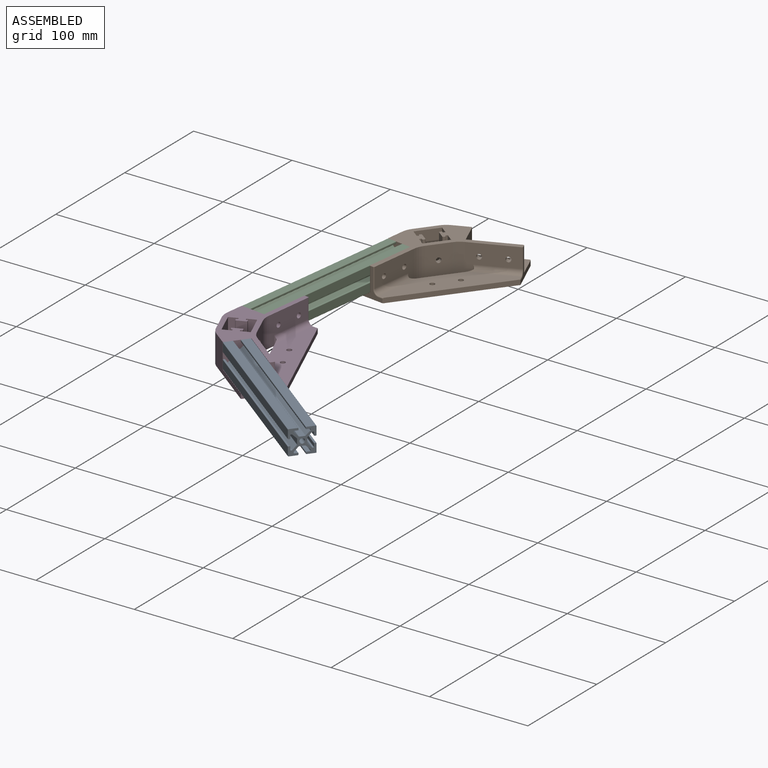
[diagram: assembled view]
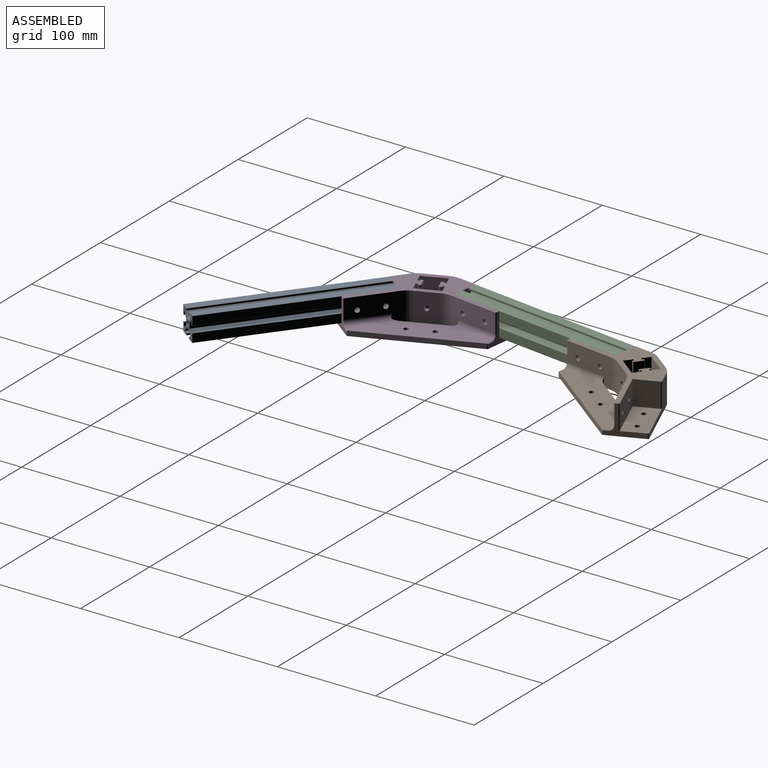
[diagram: assembled view, second angle]
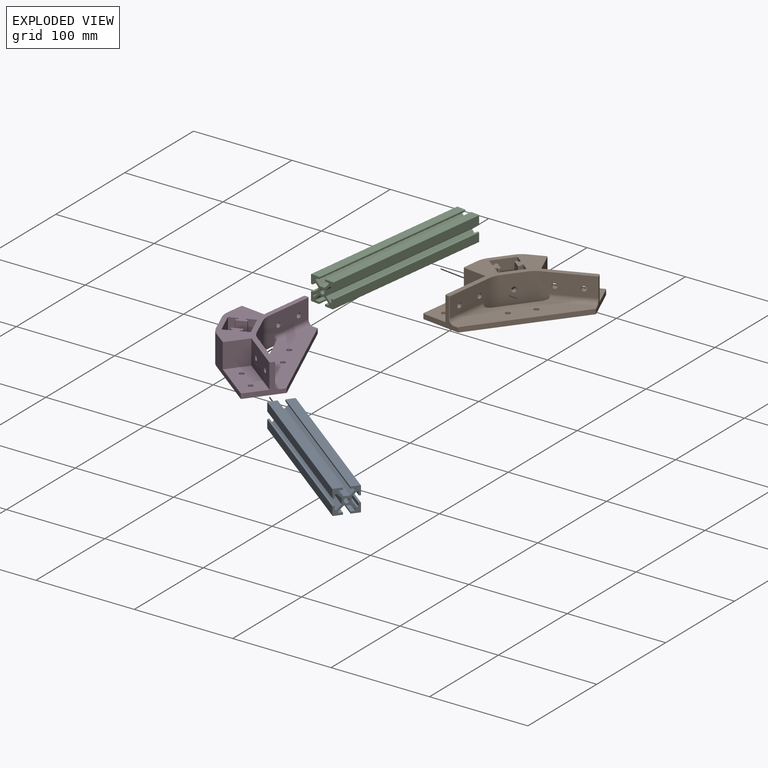
[diagram: exploded view]
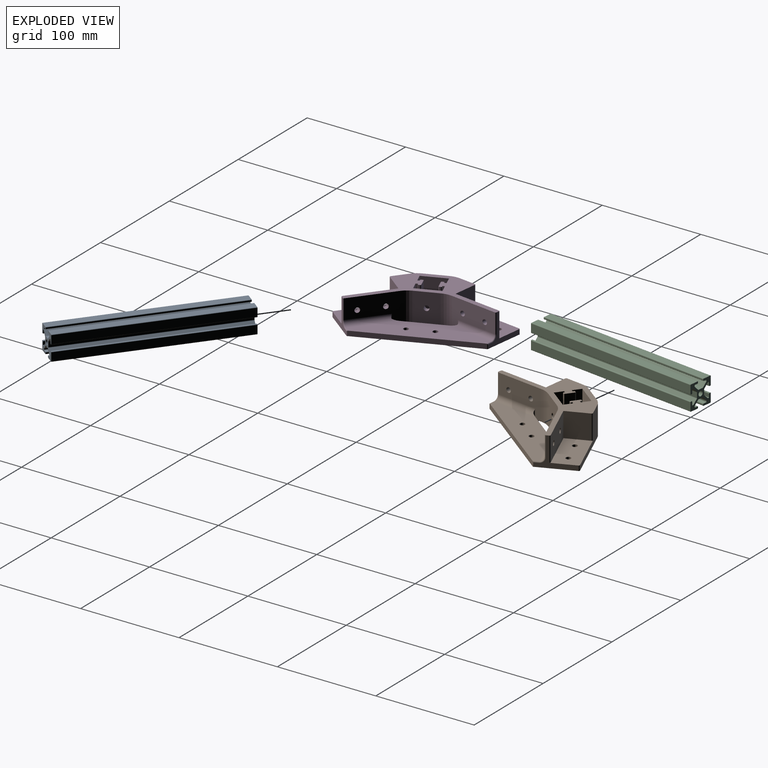
[diagram: exploded view, second angle]
ASSEMBLY  parts=4 mates=9
PART A: 91 faces, bbox 25x25x180 mm
  f0: cylinder r=0.5mm len=180mm, axis (0,0,-1), area 70.7mm2, adj f1,f88,f89,f90
  f1: plane 180x5.33mm, normal (0,1,0), area 960mm2, adj f0,f2,f89,f90
  f2: cylinder r=0.5mm len=180mm, axis (0,0,-1), area 70.7mm2, adj f1,f3,f89,f90
  f3: plane 180x4.18mm, normal (0.71,0.71,0), area 1063.6mm2, adj f2,f4,f89,f90
  f4: cylinder r=0.5mm len=180mm, axis (0,0,-1), area 70.7mm2, adj f3,f5,f89,f90
  f5: plane 180x0.81mm, normal (1,0,0), area 146.1mm2, adj f4,f6,f89,f90
  f6: cylinder r=0.5mm len=180mm, axis (0,0,-1), area 141.4mm2, adj f5,f7,f89,f90
  f7: plane 180x3.1mm, normal (0,-1,0), area 557.1mm2, adj f6,f8,f89,f90
  f8: cylinder r=0.5mm len=180mm, axis (0,0,-1), area 141.4mm2, adj f7,f9,f89,f90
  f9: plane 180x1.13mm, normal (1,0,0), area 203.4mm2, adj f8,f10,f89,f90
  f10: cylinder r=0.5mm len=180mm, axis (0,0,-1), area 141.4mm2, adj f9,f11,f89,f90
  f11: plane 180x8.25mm, normal (0,1,0), area 1485mm2, adj f10,f12,f89,f90
  f12: cylinder r=0.5mm len=180mm, axis (0,0,-1), area 141.4mm2, adj f11,f13,f89,f90
  f13: plane 180x8.25mm, normal (-1,0,0), area 1485mm2, adj f12,f14,f89,f90
  f14: cylinder r=0.5mm len=180mm, axis (0,0,-1), area 141.4mm2, adj f13,f15,f89,f90
  f15: plane 180x1.13mm, normal (0,-1,0), area 203.4mm2, adj f14,f16,f89,f90
  f16: cylinder r=0.5mm len=180mm, axis (0,0,-1), area 141.4mm2, adj f15,f17,f89,f90
  f17: plane 180x3.1mm, normal (1,0,0), area 557.1mm2, adj f16,f18,f89,f90
  f18: cylinder r=0.5mm len=180mm, axis (0,0,-1), area 141.4mm2, adj f17,f19,f89,f90
  f19: plane 180x0.81mm, normal (0,-1,0), area 146.1mm2, adj f18,f20,f89,f90
  f20: cylinder r=0.5mm len=180mm, axis (0,0,-1), area 70.7mm2, adj f19,f21,f89,f90
  f21: plane 180x4.18mm, normal (-0.71,-0.71,0), area 1063.6mm2, adj f20,f22,f89,f90
  f22: cylinder r=0.5mm len=180mm, axis (0,0,-1), area 70.7mm2, adj f21,f23,f89,f90
  f23: plane 180x5.33mm, normal (-1,0,0), area 960mm2, adj f22,f24,f89,f90
  f24: cylinder r=0.5mm len=180mm, axis (0,0,-1), area 70.7mm2, adj f23,f25,f89,f90
  f25: plane 180x4.18mm, normal (-0.71,0.71,0), area 1063.6mm2, adj f24,f26,f89,f90
  f26: cylinder r=0.5mm len=180mm, axis (0,0,-1), area 70.7mm2, adj f25,f27,f89,f90
  f27: plane 180x0.81mm, normal (0,1,0), area 146.1mm2, adj f26,f28,f89,f90
  f28: cylinder r=0.5mm len=180mm, axis (0,0,-1), area 141.4mm2, adj f27,f29,f89,f90
  f29: plane 180x3.1mm, normal (1,0,0), area 557.1mm2, adj f28,f30,f89,f90
  f30: cylinder r=0.5mm len=180mm, axis (0,0,-1), area 141.4mm2, adj f29,f31,f89,f90
  f31: plane 180x1.13mm, normal (0,1,0), area 203.4mm2, adj f30,f32,f89,f90
  f32: cylinder r=0.5mm len=180mm, axis (0,0,-1), area 141.4mm2, adj f31,f33,f89,f90
  f33: plane 180x8.25mm, normal (-1,0,0), area 1485mm2, adj f32,f34,f89,f90
  f34: cylinder r=0.5mm len=180mm, axis (0,0,-1), area 141.4mm2, adj f33,f35,f89,f90
  f35: plane 180x8.25mm, normal (0,-1,0), area 1485mm2, adj f34,f36,f89,f90
  f36: cylinder r=0.5mm len=180mm, axis (0,0,-1), area 141.4mm2, adj f35,f37,f89,f90
  f37: plane 180x1.13mm, normal (1,0,0), area 203.4mm2, adj f36,f38,f89,f90
  f38: cylinder r=0.5mm len=180mm, axis (0,0,-1), area 141.4mm2, adj f37,f39,f89,f90
  f39: plane 180x3.1mm, normal (0,1,0), area 557.1mm2, adj f38,f40,f89,f90
  f40: cylinder r=0.5mm len=180mm, axis (0,0,-1), area 141.4mm2, adj f39,f41,f89,f90
  f41: plane 180x0.81mm, normal (1,0,0), area 146.1mm2, adj f40,f42,f89,f90
  f42: cylinder r=0.5mm len=180mm, axis (0,0,-1), area 70.7mm2, adj f41,f43,f89,f90
  f43: plane 180x4.18mm, normal (0.71,-0.71,0), area 1063.6mm2, adj f42,f44,f89,f90
  f44: cylinder r=0.5mm len=180mm, axis (0,0,-1), area 70.7mm2, adj f43,f45,f89,f90
  f45: plane 180x5.33mm, normal (0,-1,0), area 960mm2, adj f44,f46,f89,f90
  f46: cylinder r=0.5mm len=180mm, axis (0,0,-1), area 70.7mm2, adj f45,f47,f89,f90
  f47: plane 180x4.18mm, normal (-0.71,-0.71,0), area 1063.6mm2, adj f46,f48,f89,f90
  f48: cylinder r=0.5mm len=180mm, axis (0,0,-1), area 70.7mm2, adj f47,f49,f89,f90
  f49: plane 180x0.81mm, normal (-1,0,0), area 146.1mm2, adj f48,f50,f89,f90
  f50: cylinder r=0.5mm len=180mm, axis (0,0,-1), area 141.4mm2, adj f49,f51,f89,f90
  f51: plane 180x3.1mm, normal (0,1,0), area 557.1mm2, adj f50,f52,f89,f90
  f52: cylinder r=0.5mm len=180mm, axis (0,0,-1), area 141.4mm2, adj f51,f53,f89,f90
  f53: plane 180x1.13mm, normal (-1,0,0), area 203.4mm2, adj f52,f54,f89,f90
  f54: cylinder r=0.5mm len=180mm, axis (0,0,-1), area 141.4mm2, adj f53,f55,f89,f90
  f55: plane 180x8.25mm, normal (0,-1,0), area 1485mm2, adj f54,f56,f89,f90
  f56: cylinder r=0.5mm len=180mm, axis (0,0,-1), area 141.4mm2, adj f55,f57,f89,f90
  f57: plane 180x8.25mm, normal (1,0,0), area 1485mm2, adj f56,f58,f89,f90
  f58: cylinder r=0.5mm len=180mm, axis (0,0,-1), area 141.4mm2, adj f57,f59,f89,f90
  f59: plane 180x1.13mm, normal (0,1,0), area 203.4mm2, adj f58,f60,f89,f90
  f60: cylinder r=0.5mm len=180mm, axis (0,0,-1), area 141.4mm2, adj f59,f61,f89,f90
  f61: plane 180x3.1mm, normal (-1,0,0), area 557.1mm2, adj f60,f62,f89,f90
  f62: cylinder r=0.5mm len=180mm, axis (0,0,-1), area 141.4mm2, adj f61,f63,f89,f90
  f63: plane 180x0.81mm, normal (0,1,0), area 146.1mm2, adj f62,f64,f89,f90
  f64: cylinder r=0.5mm len=180mm, axis (0,0,-1), area 70.7mm2, adj f63,f65,f89,f90
  f65: plane 180x4.18mm, normal (0.71,0.71,0), area 1063.6mm2, adj f64,f66,f89,f90
  f66: cylinder r=0.5mm len=180mm, axis (0,0,-1), area 70.7mm2, adj f65,f67,f89,f90
  f67: plane 180x5.33mm, normal (1,0,0), area 960mm2, adj f66,f68,f89,f90
  f68: cylinder r=0.5mm len=180mm, axis (0,0,-1), area 70.7mm2, adj f67,f69,f89,f90
  f69: plane 180x4.18mm, normal (0.71,-0.71,0), area 1063.6mm2, adj f68,f70,f89,f90
  f70: cylinder r=0.5mm len=180mm, axis (0,0,-1), area 70.7mm2, adj f69,f71,f89,f90
  f71: plane 180x0.81mm, normal (0,-1,0), area 146.1mm2, adj f70,f72,f89,f90
  f72: cylinder r=0.5mm len=180mm, axis (0,0,-1), area 141.4mm2, adj f71,f73,f89,f90
  f73: plane 180x3.1mm, normal (-1,0,0), area 557.1mm2, adj f72,f74,f89,f90
  f74: cylinder r=0.5mm len=180mm, axis (0,0,-1), area 141.4mm2, adj f73,f75,f89,f90
  f75: plane 180x1.13mm, normal (0,-1,0), area 203.4mm2, adj f74,f76,f89,f90
  f76: cylinder r=0.5mm len=180mm, axis (0,0,-1), area 141.4mm2, adj f75,f77,f89,f90
  f77: plane 180x8.25mm, normal (1,0,0), area 1485mm2, adj f76,f78,f89,f90
  f78: cylinder r=0.5mm len=180mm, axis (0,0,-1), area 141.4mm2, adj f77,f79,f89,f90
  f79: plane 180x8.25mm, normal (0,1,0), area 1485mm2, adj f78,f80,f89,f90
  f80: cylinder r=0.5mm len=180mm, axis (0,0,-1), area 141.4mm2, adj f79,f81,f89,f90
  f81: plane 180x1.13mm, normal (-1,0,0), area 203.4mm2, adj f80,f82,f89,f90
  f82: cylinder r=0.5mm len=180mm, axis (0,0,-1), area 141.4mm2, adj f81,f83,f89,f90
  f83: plane 180x3.1mm, normal (0,-1,0), area 557.1mm2, adj f82,f84,f89,f90
  f84: cylinder r=0.5mm len=180mm, axis (0,0,-1), area 141.4mm2, adj f83,f85,f89,f90
  f85: plane 180x0.81mm, normal (-1,0,0), area 146.1mm2, adj f84,f86,f89,f90
  f86: cylinder r=0.5mm len=180mm, axis (0,0,-1), area 70.7mm2, adj f85,f88,f89,f90
  f87: cylinder r=2.5mm len=180mm, axis (0,0,-1), area 2827.4mm2, adj f89,f90
  f88: plane 180x4.18mm, normal (-0.71,0.71,0), area 1063.6mm2, adj f0,f86,f89,f90
  f89: plane 25x25mm, normal (0,0,1), area 277.4mm2, adj f0,f1,f2,f3,f4,f5,f6,f7
  f90: plane 25x25mm, normal (0,0,-1), area 277.4mm2, adj f0,f1,f2,f3,f4,f5,f6,f7
PART B: 80 faces, bbox 71.7x159.5x30 mm
  f0: plane 42.12x30mm, normal (0.87,0.5,0), area 1002.6mm2, adj f21,f22,f53,f54,f55,f63,f64,f73
  f1: plane 30x24.28mm, normal (1,0,0), area 708.8mm2, adj f21,f22,f26,f31,f55
  f2: plane 25x20.78mm, normal (0.5,0.87,0), area 600mm2, adj f21,f23,f24,f79
  f3: cylinder r=0.75mm len=30mm, axis (0,0,-1), area 35.3mm2, adj f4,f20,f21,f22
  f4: plane 30x1.5mm, normal (1,0,0), area 45mm2, adj f3,f5,f21,f22
  f5: cylinder r=0.75mm len=30mm, axis (0,0,-1), area 35.3mm2, adj f4,f6,f21,f22
  f6: plane 30x1.25mm, normal (0,1,0), area 37.5mm2, adj f5,f7,f21,f22
  f7: plane 30x2.13mm, normal (1,0,0), area 63.9mm2, adj f6,f8,f21,f22
  f8: plane 30x9.25mm, normal (0,-1,0), area 277.5mm2, adj f7,f9,f21,f22
  f9: plane 30x25mm, normal (-1,0,0), area 730.4mm2, adj f8,f21,f22,f26,f39
  f10: plane 42.12x30mm, normal (0.87,-0.5,0), area 1002.6mm2, adj f21,f22,f29,f30,f31,f62,f68,f72
  f11: plane 57.75x33.34mm, normal (-0.87,0.5,0), area 750.4mm2, adj f21,f22,f23,f32,f78,f79
  f12: plane 30x23.04mm, normal (-1,0,0), area 691.2mm2, adj f21,f22,f32,f56
  f13: plane 30x25mm, normal (1,0,0), area 750mm2, adj f14,f21,f22,f41
  f14: plane 30x9.25mm, normal (0,-1,0), area 277.5mm2, adj f13,f15,f21,f22
  f15: plane 30x2.13mm, normal (-1,0,0), area 63.9mm2, adj f14,f16,f21,f22
  f16: plane 30x1.25mm, normal (0,1,0), area 37.5mm2, adj f15,f17,f21,f22
  f17: cylinder r=0.75mm len=30mm, axis (0,0,-1), area 35.3mm2, adj f16,f18,f21,f22
  f18: plane 30x1.5mm, normal (-1,0,0), area 45mm2, adj f17,f19,f21,f22
  f19: cylinder r=0.75mm len=30mm, axis (0,0,-1), area 35.3mm2, adj f18,f20,f21,f22
  f20: plane 30x9mm, normal (0,-1,0), area 270mm2, adj f3,f19,f21,f22
  f21: plane 134.53x62.13mm, normal (0,0,1), area 2007.8mm2, adj f0,f1,f2,f3,f4,f5,f6,f7
  f22: plane 159.53x71.16mm, normal (0,0,-1), area 7361.9mm2, adj f0,f1,f3,f4,f5,f6,f7,f8
  f23: plane 55.44x48.02mm, normal (0,0,1), area 1210.9mm2, adj f2,f11,f24,f25,f27,f28,f77,f78
  f24: plane 42.44x25mm, normal (-0.87,0.5,0), area 1185.7mm2, adj f2,f21,f23,f29,f30,f77
  f25: plane 33.28x30mm, normal (0.5,0.87,0), area 264.4mm2, adj f21,f22,f23,f68,f69,f70,f71,f77
  f26: cylinder r=2.5mm len=5mm, axis (1,0,0), area 78.5mm2, adj f1,f9
  f27: cylinder r=2.5mm len=5mm, axis (0,0,-1), area 78.5mm2, adj f22,f23
  f28: cylinder r=2.5mm len=5mm, axis (0,0,-1), area 78.5mm2, adj f22,f23
  f29: cylinder r=2.5mm len=6.83mm, axis (0.87,-0.5,0), area 78.5mm2, adj f10,f24
  f30: cylinder r=2.5mm len=6.83mm, axis (0.87,-0.5,0), area 78.5mm2, adj f10,f24
  f31: cylinder r=20mm len=30mm, axis (0,0,1), area 314.2mm2, adj f1,f10,f21,f22
  f32: cylinder r=20mm len=30mm, axis (0,0,-1), area 314.2mm2, adj f11,f12,f21,f22
  f33: plane 25x20.78mm, normal (0.5,-0.87,0), area 600mm2, adj f21,f48,f49,f76
  f34: cylinder r=0.75mm len=30mm, axis (0,0,-1), area 35.3mm2, adj f21,f22,f35,f47
  f35: plane 30x1.5mm, normal (1,0,0), area 45mm2, adj f21,f22,f34,f36
  f36: cylinder r=0.75mm len=30mm, axis (0,0,-1), area 35.3mm2, adj f21,f22,f35,f37
  f37: plane 30x1.25mm, normal (0,-1,0), area 37.5mm2, adj f21,f22,f36,f38
  f38: plane 30x2.13mm, normal (1,0,0), area 63.9mm2, adj f21,f22,f37,f39
  f39: plane 30x9.25mm, normal (0,1,0), area 277.5mm2, adj f9,f21,f22,f38
  f40: plane 57.75x33.34mm, normal (-0.87,-0.5,0), area 750.4mm2, adj f21,f22,f48,f56,f74,f76
  f41: plane 30x9.25mm, normal (0,1,0), area 277.5mm2, adj f13,f21,f22,f42
  f42: plane 30x2.13mm, normal (-1,0,0), area 63.9mm2, adj f21,f22,f41,f43
  f43: plane 30x1.25mm, normal (0,-1,0), area 37.5mm2, adj f21,f22,f42,f44
  f44: cylinder r=0.75mm len=30mm, axis (0,0,-1), area 35.3mm2, adj f21,f22,f43,f45
  f45: plane 30x1.5mm, normal (-1,0,0), area 45mm2, adj f21,f22,f44,f46
  f46: cylinder r=0.75mm len=30mm, axis (0,0,-1), area 35.3mm2, adj f21,f22,f45,f47
  f47: plane 30x9mm, normal (0,1,0), area 270mm2, adj f21,f22,f34,f46
  f48: plane 55.44x48.02mm, normal (0,0,1), area 1210.9mm2, adj f33,f40,f49,f50,f51,f52,f74,f75
  f49: plane 42.44x25mm, normal (-0.87,-0.5,0), area 1185.7mm2, adj f21,f33,f48,f53,f54,f75
  f50: plane 33.28x30mm, normal (0.5,-0.87,0), area 264.4mm2, adj f21,f22,f48,f64,f65,f66,f67,f74
  f51: cylinder r=2.5mm len=5mm, axis (0,0,-1), area 78.5mm2, adj f22,f48
  f52: cylinder r=2.5mm len=5mm, axis (0,0,-1), area 78.5mm2, adj f22,f48
  f53: cylinder r=2.5mm len=6.83mm, axis (0.87,0.5,0), area 78.5mm2, adj f0,f49
  f54: cylinder r=2.5mm len=6.83mm, axis (0.87,0.5,0), area 78.5mm2, adj f0,f49
  f55: cylinder r=20mm len=30mm, axis (0,0,1), area 314.2mm2, adj f0,f1,f21,f22
  f56: cylinder r=20mm len=30mm, axis (0,0,-1), area 314.2mm2, adj f12,f21,f22,f40
  f57: plane 123.53x28.16mm, normal (0,0,1), area 2483.2mm2, adj f58,f59,f60,f61,f62,f63,f67,f71
  f58: plane 119.12x5.01mm, normal (1,0,0), area 595.5mm2, adj f22,f57,f65,f67,f70,f71
  f59: plane 55.25x6.1mm, normal (-1,0,0), area 280.6mm2, adj f22,f57,f62,f63,f72,f73
  f60: cylinder r=2.5mm len=5mm, axis (0,0,-1), area 78.5mm2, adj f22,f57
  f61: cylinder r=2.5mm len=5mm, axis (0,0,-1), area 78.5mm2, adj f22,f57
  f62: cylinder r=5mm len=42.91mm, axis (0.5,0.87,0), area 331.8mm2, adj f10,f57,f59,f69,f72
  f63: cylinder r=5mm len=42.91mm, axis (-0.5,0.87,0), area 331.8mm2, adj f0,f57,f59,f66,f73
  f64: cylinder r=1mm len=20mm, axis (0,0,-1), area 31.4mm2, adj f0,f21,f50,f66
  f65: cylinder r=1mm len=4.87mm, axis (0,0,1), area 4.6mm2, adj f22,f50,f58,f67
  f66: torus R=6mm, axis (0.5,-0.87,0), area 13.2mm2, adj f50,f63,f64,f67
  f67: cylinder r=1mm len=5.33mm, axis (0.87,0.5,0), area 7.9mm2, adj f50,f57,f58,f65,f66
  f68: cylinder r=1mm len=20mm, axis (0,0,-1), area 31.4mm2, adj f10,f21,f25,f69
  f69: torus R=6mm, axis (0.5,0.87,0), area 13.2mm2, adj f25,f62,f68,f71
  f70: cylinder r=1mm len=4.87mm, axis (0,0,1), area 4.6mm2, adj f22,f25,f58,f71
  f71: cylinder r=1mm len=5.33mm, axis (-0.87,0.5,0), area 7.9mm2, adj f25,f57,f58,f69,f70
  f72: cylinder r=1mm len=10mm, axis (0,0,1), area 19.9mm2, adj f10,f22,f59,f62
  f73: cylinder r=1mm len=10mm, axis (0,0,1), area 19.9mm2, adj f0,f22,f59,f63
  f74: cylinder r=1mm len=5mm, axis (0,0,-1), area 7.9mm2, adj f22,f40,f48,f50
  f75: cylinder r=1mm len=25mm, axis (0,0,-1), area 39.3mm2, adj f21,f48,f49,f50
  f76: cylinder r=1mm len=25mm, axis (0,0,1), area 39.3mm2, adj f21,f33,f40,f48
  f77: cylinder r=1mm len=25mm, axis (0,0,-1), area 39.3mm2, adj f21,f23,f24,f25
  f78: cylinder r=1mm len=5mm, axis (0,0,-1), area 7.9mm2, adj f11,f22,f23,f25
  f79: cylinder r=1mm len=25mm, axis (0,0,1), area 39.3mm2, adj f2,f11,f21,f23
PART C: same geometry as A
PART D: same geometry as B
PLACE A rot(axis=(-0.33,0.67,-0.67),143.5deg) t=(-35.87,-256.73,27.93)mm
PLACE B rot(axis=(0,0,-1),37.5deg) t=(-7.22,-5.2,10.43)mm fixed
PLACE C rot(axis=(0.05,0.71,0.71),174.7deg) t=(-59.3,-200.24,27.93)mm
PLACE D rot(axis=(0,0,1),22.5deg) t=(-35.89,-223.64,10.43)mm
MATE planar A.f33 <-> D.f49  axis (0.61,0.79,0) through (43.16,-301.57,35.8)mm
MATE planar C.f13 <-> B.f49  axis (0.99,-0.13,0) through (-35.19,-112.63,35.8)mm
MATE planar D.f33 <-> A.f90  axis (0.79,-0.61,0) through (-35.57,-256.34,27.93)mm
MATE planar D.f21 <-> A.f35  axis (0,0,1) through (-44.87,-227.36,40.43)mm
MATE planar C.f35 <-> B.f48  axis (0,0,-1) through (-39.78,-112.03,15.43)mm
MATE planar C.f11 <-> D.f21  axis (0,0,1) through (-39.78,-112.03,40.43)mm
MATE planar C.f13 <-> D.f24  axis (0.99,-0.13,0) through (-35.19,-112.63,35.8)mm
MATE planar C.f90 <-> D.f2  axis (0.13,0.99,0) through (-71.69,-198.61,39.93)mm
MATE planar C.f87 <-> B.f33  axis (0.13,0.99,0) through (-35.87,-21.77,27.93)mm
